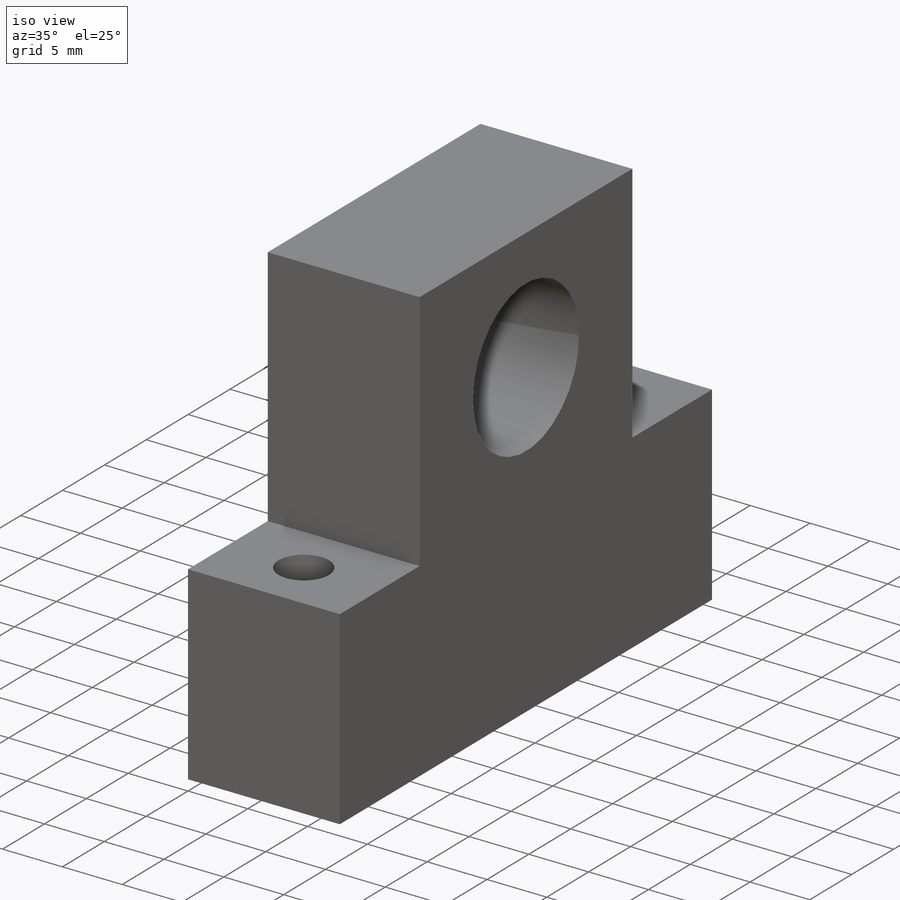
[diagram: iso view]
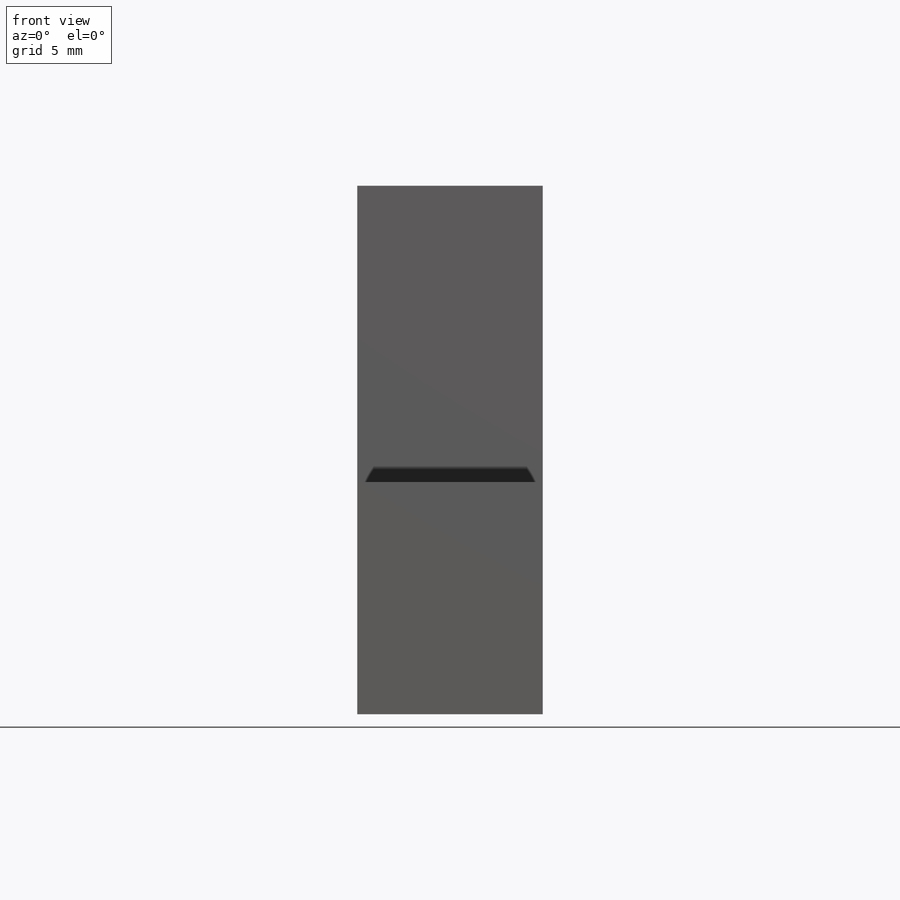
[diagram: front view]
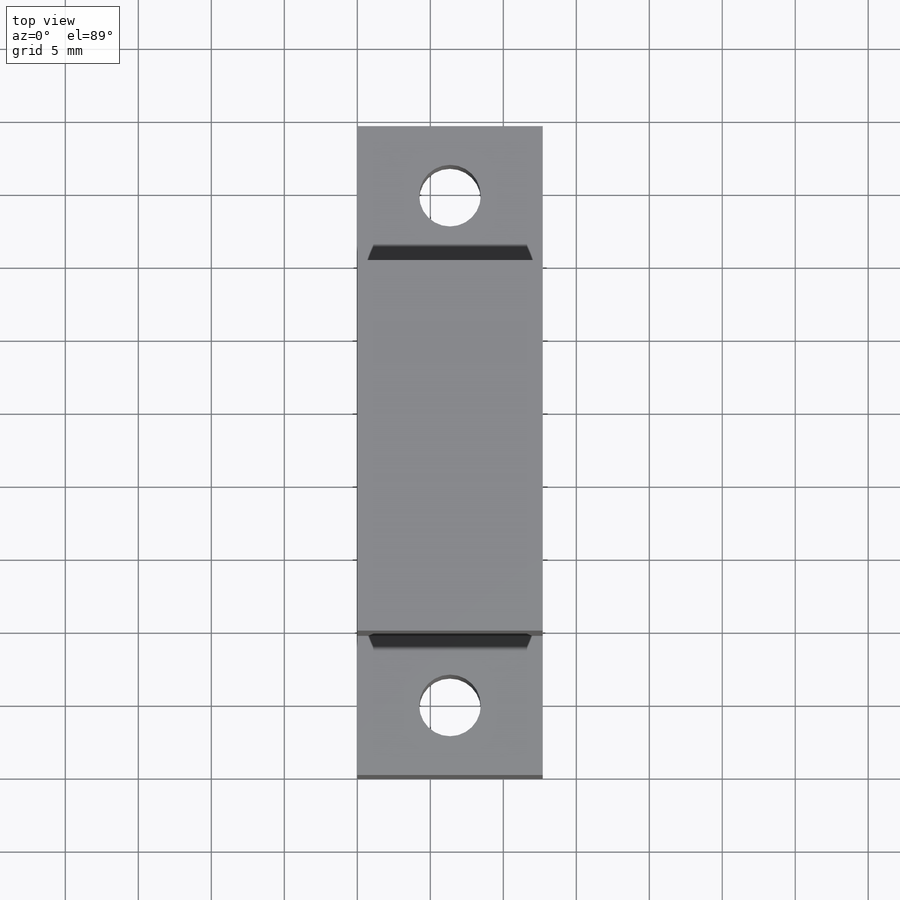
[diagram: top view]
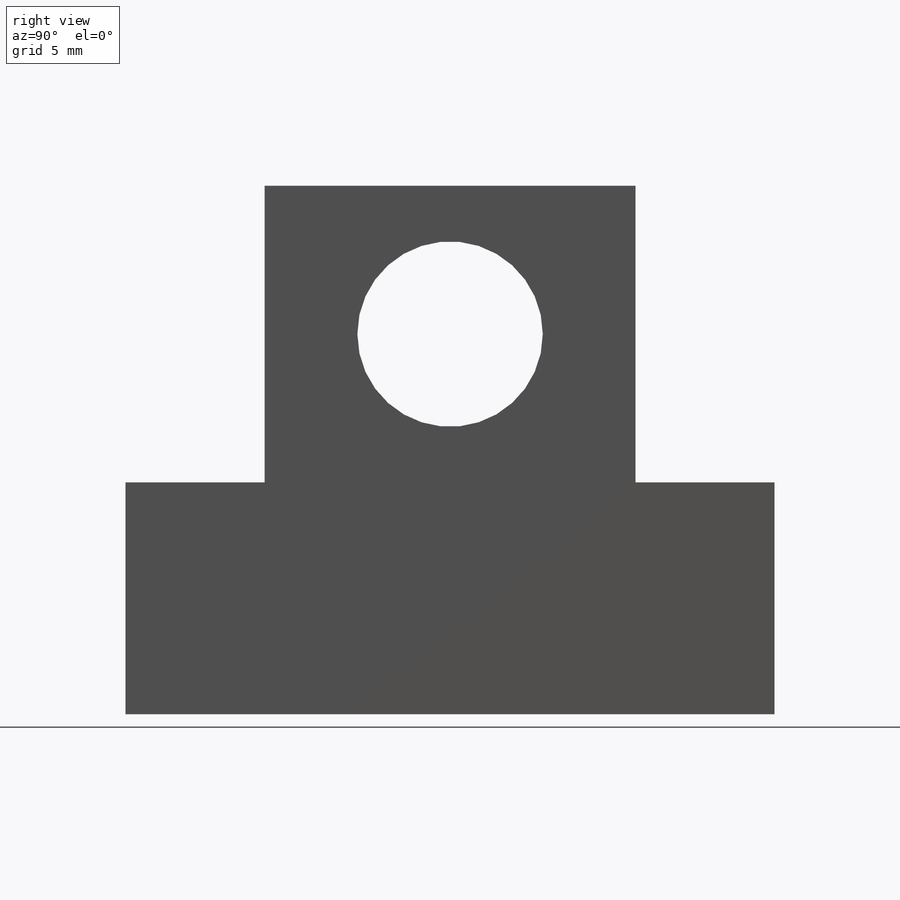
[diagram: right view]
SOLIDWORKS PART (.sldprt)
format: sldprt  version: not decoded by parser v0  size: 181,248 bytes
history: native  units: mm
features: sketch x5, cut_extrude x3, extrude x2, material x1 (+13 scaffold rows collapsed)
feature tree (24):
  scaffold x13  (default folders/planes/origin — collapsed)
  material  "Material <not specified>"
  sketch  "Sketch2"
  extrude  "Boss-Extrude1"  Depth=15.88mm
  sketch  "Sketch4"
  extrude  "Boss-Extrude2"  Depth=20.32mm
  sketch  "Sketch5"  dims[D1=~6.923826mm]
  cut_extrude  "Cut-Extrude1"  Depth=12.7mm
  sketch  "Sketch6"  dims[D1=3.2mm]
  cut_extrude  "Cut-Extrude2"  Depth=20.7mm
  sketch  "Sketch7"  dims[D1=~2.793051mm]
  cut_extrude  "Cut-Extrude3"  Depth=16.7mm
decode coverage: 8 of 10 modeling features carry decoded parameters
note: ~ marks probable driven/reference dimensions
note: suppression state not decoded; provenance and decode notes live in map.json
